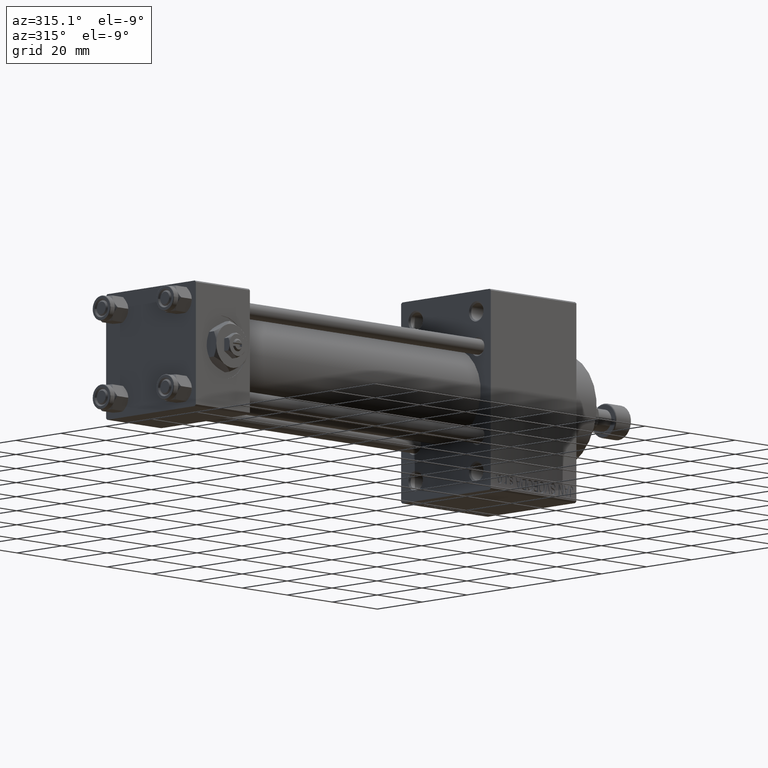
[diagram: clean part render]
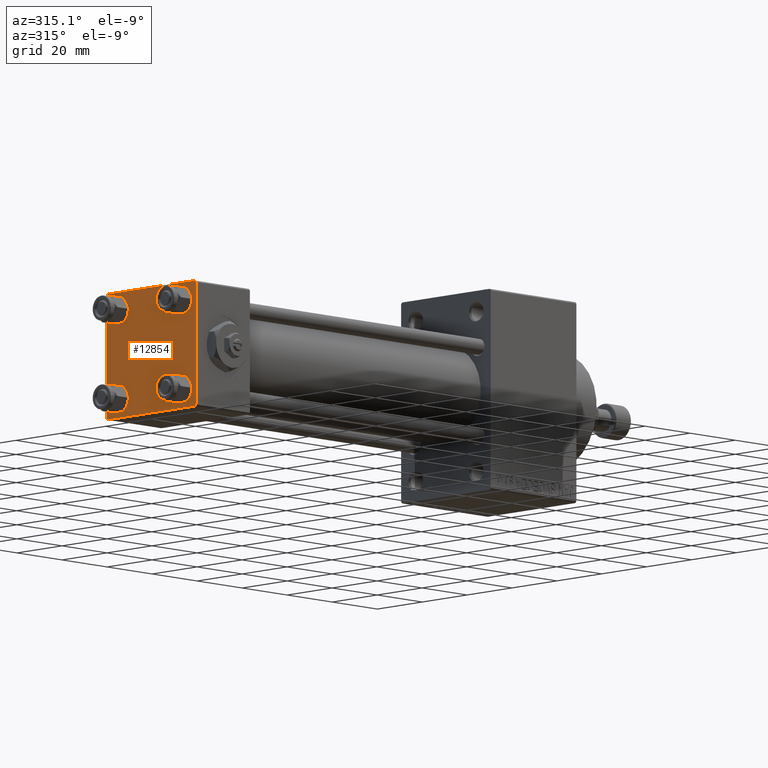
[diagram: same view with one face highlighted and labeled with its STEP entity id]
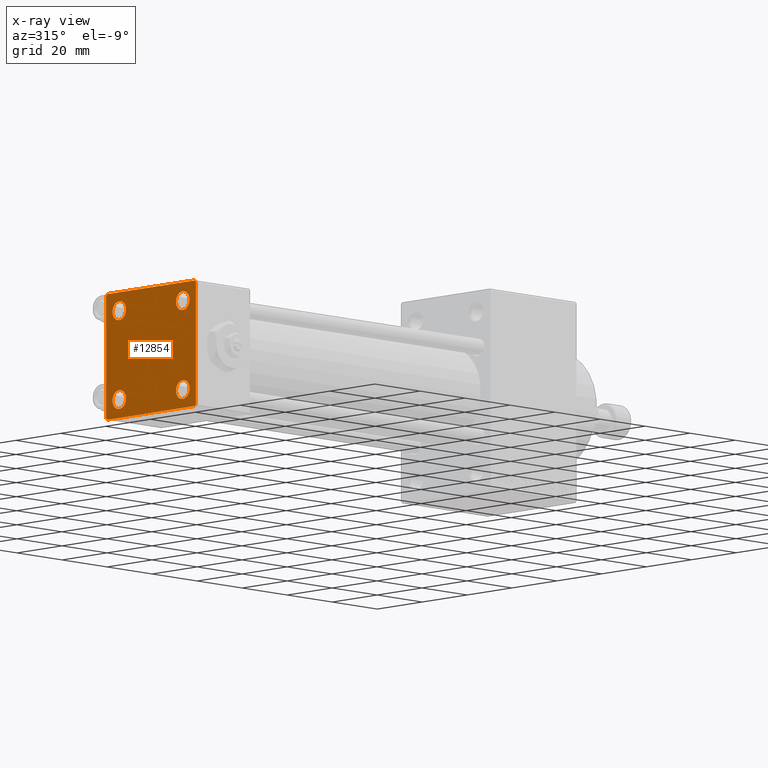
[diagram: x-ray of the same camera — body ghosted, the highlighted face saturated]
A machine part, auxiliary view. The second image highlights one B-rep face of the part: STEP entity #12854.
The next image is the same camera in x-ray: the body ghosted, the highlighted face saturated — about 0% of this face is hidden behind the body in this view.
In plain terms, the highlighted planar face has unit normal (-1, 0, 0).
Its self-contained STEP definition (entity closure, byte-faithful):
#162 = AXIS2_PLACEMENT_3D ( 'NONE', #30220, #48893, #45163 ) ;
#562 = FACE_BOUND ( 'NONE', #5232, .T. ) ;
#644 = DIRECTION ( 'NONE',  ( 1.000000000000000000, 0.000000000000000000, 0.000000000000000000 ) ) ;
#1057 = ORIENTED_EDGE ( 'NONE', *, *, #8814, .T. ) ;
#1256 = VERTEX_POINT ( 'NONE', #14360 ) ;
#1558 = LINE ( 'NONE', #35664, #22438 ) ;
#2102 = CARTESIAN_POINT ( 'NONE',  ( 0.000000000000000000, -20.00000000000000000, -19.49999999999999645 ) ) ;
#2186 = ORIENTED_EDGE ( 'NONE', *, *, #9487, .T. ) ;
#2409 = CARTESIAN_POINT ( 'NONE',  ( 0.000000000000000000, -20.00000000000000355, 19.99999999999998934 ) ) ;
#3156 = DIRECTION ( 'NONE',  ( -0.000000000000000000, 0.7071067811865500152, 0.7071067811865451302 ) ) ;
#3430 = VERTEX_POINT ( 'NONE', #33350 ) ;
#3490 = VERTEX_POINT ( 'NONE', #22659 ) ;
#3537 = VECTOR ( 'NONE', #13868, 1000.000000000000000 ) ;
#3688 = DIRECTION ( 'NONE',  ( 1.000000000000000000, 0.000000000000000000, 0.000000000000000000 ) ) ;
#4393 = ORIENTED_EDGE ( 'NONE', *, *, #42604, .T. ) ;
#4563 = VERTEX_POINT ( 'NONE', #9654 ) ;
#5232 = EDGE_LOOP ( 'NONE', ( #27392, #2186 ) ) ;
#5527 = CIRCLE ( 'NONE', #41358, 2.999999999999983569 ) ;
#5640 = LINE ( 'NONE', #2409, #3537 ) ;
#7453 = CARTESIAN_POINT ( 'NONE',  ( 0.000000000000000000, 20.00000000000000000, 20.00000000000000000 ) ) ;
#7624 = DIRECTION ( 'NONE',  ( 0.000000000000000000, 0.000000000000000000, 1.000000000000000000 ) ) ;
#8221 = VERTEX_POINT ( 'NONE', #18098 ) ;
#8330 = VECTOR ( 'NONE', #10200, 1000.000000000000000 ) ;
#8450 = DIRECTION ( 'NONE',  ( 1.000000000000000000, 0.000000000000000000, 0.000000000000000000 ) ) ;
#8575 = DIRECTION ( 'NONE',  ( 1.000000000000000000, 0.000000000000000000, 0.000000000000000000 ) ) ;
#8688 = CARTESIAN_POINT ( 'NONE',  ( 0.000000000000000000, -14.14999999999999503, 14.15000000000000391 ) ) ;
#8814 = EDGE_CURVE ( 'NONE', #3490, #3430, #1558, .T. ) ;
#9345 = LINE ( 'NONE', #17568, #46377 ) ;
#9487 = EDGE_CURVE ( 'NONE', #42202, #13769, #21655, .T. ) ;
#9654 = CARTESIAN_POINT ( 'NONE',  ( 0.000000000000000000, 14.14999999999999858, -17.14999999999998437 ) ) ;
#9746 = DIRECTION ( 'NONE',  ( -0.000000000000000000, -0.7071067811865524577, -0.7071067811865426878 ) ) ;
#10200 = DIRECTION ( 'NONE',  ( 0.000000000000000000, -1.000000000000000000, -2.602085213965210149E-16 ) ) ;
#10370 = VERTEX_POINT ( 'NONE', #25839 ) ;
#10421 = VERTEX_POINT ( 'NONE', #11856 ) ;
#10981 = EDGE_CURVE ( 'NONE', #13769, #42202, #26475, .T. ) ;
#10994 = ORIENTED_EDGE ( 'NONE', *, *, #20286, .T. ) ;
#11143 = CARTESIAN_POINT ( 'NONE',  ( 0.000000000000000000, -14.14999999999999503, -14.15000000000000391 ) ) ;
#11362 = VERTEX_POINT ( 'NONE', #22373 ) ;
#11621 = CARTESIAN_POINT ( 'NONE',  ( 0.000000000000000000, 14.14999999999999858, -14.15000000000000036 ) ) ;
#11679 = DIRECTION ( 'NONE',  ( 0.000000000000000000, 0.000000000000000000, 1.000000000000000000 ) ) ;
#11856 = CARTESIAN_POINT ( 'NONE',  ( 0.000000000000000000, -14.14999999999999503, -17.15000000000000924 ) ) ;
#12265 = PLANE ( 'NONE',  #38478 ) ;
#12806 = ORIENTED_EDGE ( 'NONE', *, *, #16680, .T. ) ;
#12854 = ADVANCED_FACE ( 'NONE', ( #19503, #15760, #23736, #562, #39143 ), #12265, .T. ) ;
#13431 = CARTESIAN_POINT ( 'NONE',  ( 0.000000000000000000, 20.00000000000000000, 20.00000000000000000 ) ) ;
#13769 = VERTEX_POINT ( 'NONE', #45816 ) ;
#13868 = DIRECTION ( 'NONE',  ( 0.000000000000000000, 8.673617379884036705E-17, -1.000000000000000000 ) ) ;
#13877 = LINE ( 'NONE', #27053, #32965 ) ;
#14185 = VECTOR ( 'NONE', #27732, 1000.000000000000000 ) ;
#14360 = CARTESIAN_POINT ( 'NONE',  ( 0.000000000000000000, 14.14999999999999858, -11.15000000000001812 ) ) ;
#15109 = EDGE_CURVE ( 'NONE', #11362, #40607, #5640, .T. ) ;
#15458 = CIRCLE ( 'NONE', #25811, 3.000000000000004441 ) ;
#15531 = CIRCLE ( 'NONE', #45730, 2.999999999999983569 ) ;
#15760 = FACE_BOUND ( 'NONE', #17341, .T. ) ;
#16004 = DIRECTION ( 'NONE',  ( -1.000000000000000000, 0.000000000000000000, -0.000000000000000000 ) ) ;
#16072 = EDGE_CURVE ( 'NONE', #11362, #10370, #13877, .T. ) ;
#16559 = DIRECTION ( 'NONE',  ( 0.000000000000000000, 0.000000000000000000, 1.000000000000000000 ) ) ;
#16644 = ORIENTED_EDGE ( 'NONE', *, *, #39650, .T. ) ;
#16680 = EDGE_CURVE ( 'NONE', #41706, #8221, #17908, .T. ) ;
#17341 = EDGE_LOOP ( 'NONE', ( #27473, #34415 ) ) ;
#17568 = CARTESIAN_POINT ( 'NONE',  ( 0.000000000000000000, -19.75000000000020961, -19.74999999999979394 ) ) ;
#17580 = VERTEX_POINT ( 'NONE', #18938 ) ;
#17690 = DIRECTION ( 'NONE',  ( 0.000000000000000000, 0.000000000000000000, 1.000000000000000000 ) ) ;
#17908 = CIRCLE ( 'NONE', #36159, 2.999999999999983569 ) ;
#18098 = CARTESIAN_POINT ( 'NONE',  ( 0.000000000000000000, -14.14999999999999503, 11.15000000000002345 ) ) ;
#18938 = CARTESIAN_POINT ( 'NONE',  ( 0.000000000000000000, 19.50000000000000000, 20.00000000000000000 ) ) ;
#19503 = FACE_BOUND ( 'NONE', #33250, .T. ) ;
#19553 = EDGE_CURVE ( 'NONE', #17580, #10370, #26153, .T. ) ;
#19993 = CARTESIAN_POINT ( 'NONE',  ( 0.000000000000000000, 0.000000000000000000, 0.000000000000000000 ) ) ;
#20279 = LINE ( 'NONE', #43421, #24282 ) ;
#20286 = EDGE_CURVE ( 'NONE', #17580, #24181, #20279, .T. ) ;
#20298 = AXIS2_PLACEMENT_3D ( 'NONE', #41733, #644, #7624 ) ;
#20500 = CARTESIAN_POINT ( 'NONE',  ( 0.000000000000000000, -14.14999999999999503, 17.14999999999998792 ) ) ;
#20602 = VERTEX_POINT ( 'NONE', #38271 ) ;
#21655 = CIRCLE ( 'NONE', #162, 2.999999999999983569 ) ;
#22373 = CARTESIAN_POINT ( 'NONE',  ( 0.000000000000000000, -20.00000000000000355, 19.49999999999998224 ) ) ;
#22438 = VECTOR ( 'NONE', #9746, 1000.000000000000000 ) ;
#22659 = CARTESIAN_POINT ( 'NONE',  ( 0.000000000000000000, 20.00000000000000000, -19.50000000000002132 ) ) ;
#23310 = EDGE_CURVE ( 'NONE', #3430, #20602, #39651, .T. ) ;
#23340 = DIRECTION ( 'NONE',  ( 0.000000000000000000, 0.000000000000000000, 1.000000000000000000 ) ) ;
#23495 = DIRECTION ( 'NONE',  ( -0.000000000000000000, 0.000000000000000000, 1.000000000000000000 ) ) ;
#23515 = CARTESIAN_POINT ( 'NONE',  ( 0.000000000000000000, 20.00000000000000000, -20.00000000000000711 ) ) ;
#23736 = FACE_BOUND ( 'NONE', #30996, .T. ) ;
#24015 = VECTOR ( 'NONE', #32120, 1000.000000000000000 ) ;
#24181 = VERTEX_POINT ( 'NONE', #34460 ) ;
#24282 = VECTOR ( 'NONE', #34959, 999.9999999999998863 ) ;
#25811 = AXIS2_PLACEMENT_3D ( 'NONE', #11143, #3688, #29850 ) ;
#25839 = CARTESIAN_POINT ( 'NONE',  ( 0.000000000000000000, -19.49999999999999289, 19.99999999999998934 ) ) ;
#26153 = LINE ( 'NONE', #7453, #8330 ) ;
#26475 = CIRCLE ( 'NONE', #47152, 2.999999999999983569 ) ;
#26550 = AXIS2_PLACEMENT_3D ( 'NONE', #39196, #8575, #16559 ) ;
#26749 = VERTEX_POINT ( 'NONE', #32265 ) ;
#27053 = CARTESIAN_POINT ( 'NONE',  ( -0.000000000000000000, -19.74999999999992539, 19.75000000000006395 ) ) ;
#27066 = DIRECTION ( 'NONE',  ( 1.000000000000000000, 0.000000000000000000, 0.000000000000000000 ) ) ;
#27380 = EDGE_CURVE ( 'NONE', #4563, #1256, #5527, .T. ) ;
#27392 = ORIENTED_EDGE ( 'NONE', *, *, #10981, .T. ) ;
#27473 = ORIENTED_EDGE ( 'NONE', *, *, #40112, .T. ) ;
#27732 = DIRECTION ( 'NONE',  ( 0.000000000000000000, -1.000000000000000000, 1.734723475976807094E-16 ) ) ;
#28162 = CIRCLE ( 'NONE', #26550, 2.999999999999983569 ) ;
#29210 = ORIENTED_EDGE ( 'NONE', *, *, #19553, .F. ) ;
#29661 = ORIENTED_EDGE ( 'NONE', *, *, #30992, .T. ) ;
#29850 = DIRECTION ( 'NONE',  ( 0.000000000000000000, 0.000000000000000000, 1.000000000000000000 ) ) ;
#30220 = CARTESIAN_POINT ( 'NONE',  ( 0.000000000000000000, 14.14999999999999858, 14.15000000000000036 ) ) ;
#30992 = EDGE_CURVE ( 'NONE', #24181, #3490, #39347, .T. ) ;
#30996 = EDGE_LOOP ( 'NONE', ( #4393, #32619 ) ) ;
#32120 = DIRECTION ( 'NONE',  ( 0.000000000000000000, 0.000000000000000000, -1.000000000000000000 ) ) ;
#32265 = CARTESIAN_POINT ( 'NONE',  ( 0.000000000000000000, -14.14999999999999503, -11.15000000000000036 ) ) ;
#32492 = DIRECTION ( 'NONE',  ( 0.000000000000000000, -0.7071067811865401342, 0.7071067811865549002 ) ) ;
#32619 = ORIENTED_EDGE ( 'NONE', *, *, #27380, .T. ) ;
#32965 = VECTOR ( 'NONE', #3156, 1000.000000000000114 ) ;
#33136 = ORIENTED_EDGE ( 'NONE', *, *, #16072, .T. ) ;
#33250 = EDGE_LOOP ( 'NONE', ( #12806, #16644 ) ) ;
#33350 = CARTESIAN_POINT ( 'NONE',  ( 0.000000000000000000, 19.50000000000000711, -20.00000000000000711 ) ) ;
#33353 = CARTESIAN_POINT ( 'NONE',  ( 0.000000000000000000, 14.14999999999999858, -14.15000000000000036 ) ) ;
#34415 = ORIENTED_EDGE ( 'NONE', *, *, #41910, .T. ) ;
#34460 = CARTESIAN_POINT ( 'NONE',  ( 0.000000000000000000, 20.00000000000000000, 19.49999999999999289 ) ) ;
#34959 = DIRECTION ( 'NONE',  ( 0.000000000000000000, 0.7071067811865425767, -0.7071067811865525687 ) ) ;
#35192 = CARTESIAN_POINT ( 'NONE',  ( 0.000000000000000000, 14.14999999999999858, 11.15000000000001990 ) ) ;
#35399 = CIRCLE ( 'NONE', #20298, 3.000000000000004441 ) ;
#35664 = CARTESIAN_POINT ( 'NONE',  ( -0.000000000000000000, 19.74999999999986855, -19.75000000000014211 ) ) ;
#35782 = ORIENTED_EDGE ( 'NONE', *, *, #38364, .T. ) ;
#35826 = DIRECTION ( 'NONE',  ( 0.000000000000000000, 0.000000000000000000, 1.000000000000000000 ) ) ;
#36159 = AXIS2_PLACEMENT_3D ( 'NONE', #8688, #8450, #35826 ) ;
#38271 = CARTESIAN_POINT ( 'NONE',  ( 0.000000000000000000, -19.50000000000000711, -20.00000000000000000 ) ) ;
#38364 = EDGE_CURVE ( 'NONE', #20602, #40607, #9345, .T. ) ;
#38478 = AXIS2_PLACEMENT_3D ( 'NONE', #19993, #16004, #23495 ) ;
#38702 = EDGE_LOOP ( 'NONE', ( #29661, #1057, #43068, #35782, #40909, #33136, #29210, #10994 ) ) ;
#38807 = CARTESIAN_POINT ( 'NONE',  ( 0.000000000000000000, 14.14999999999999858, 14.15000000000000036 ) ) ;
#39143 = FACE_OUTER_BOUND ( 'NONE', #38702, .T. ) ;
#39196 = CARTESIAN_POINT ( 'NONE',  ( 0.000000000000000000, -14.14999999999999503, 14.15000000000000391 ) ) ;
#39347 = LINE ( 'NONE', #13431, #24015 ) ;
#39650 = EDGE_CURVE ( 'NONE', #8221, #41706, #28162, .T. ) ;
#39651 = LINE ( 'NONE', #23515, #14185 ) ;
#40112 = EDGE_CURVE ( 'NONE', #26749, #10421, #15458, .T. ) ;
#40607 = VERTEX_POINT ( 'NONE', #2102 ) ;
#40909 = ORIENTED_EDGE ( 'NONE', *, *, #15109, .F. ) ;
#41358 = AXIS2_PLACEMENT_3D ( 'NONE', #11621, #27066, #23340 ) ;
#41706 = VERTEX_POINT ( 'NONE', #20500 ) ;
#41733 = CARTESIAN_POINT ( 'NONE',  ( 0.000000000000000000, -14.14999999999999503, -14.15000000000000391 ) ) ;
#41807 = DIRECTION ( 'NONE',  ( 1.000000000000000000, 0.000000000000000000, 0.000000000000000000 ) ) ;
#41910 = EDGE_CURVE ( 'NONE', #10421, #26749, #35399, .T. ) ;
#42202 = VERTEX_POINT ( 'NONE', #35192 ) ;
#42604 = EDGE_CURVE ( 'NONE', #1256, #4563, #15531, .T. ) ;
#43068 = ORIENTED_EDGE ( 'NONE', *, *, #23310, .T. ) ;
#43421 = CARTESIAN_POINT ( 'NONE',  ( -0.000000000000000000, 19.75000000000013500, 19.74999999999986144 ) ) ;
#44326 = DIRECTION ( 'NONE',  ( 1.000000000000000000, 0.000000000000000000, 0.000000000000000000 ) ) ;
#45163 = DIRECTION ( 'NONE',  ( 0.000000000000000000, 0.000000000000000000, 1.000000000000000000 ) ) ;
#45730 = AXIS2_PLACEMENT_3D ( 'NONE', #33353, #44326, #17690 ) ;
#45816 = CARTESIAN_POINT ( 'NONE',  ( 0.000000000000000000, 14.14999999999999858, 17.14999999999998437 ) ) ;
#46377 = VECTOR ( 'NONE', #32492, 1000.000000000000000 ) ;
#47152 = AXIS2_PLACEMENT_3D ( 'NONE', #38807, #41807, #11679 ) ;
#48893 = DIRECTION ( 'NONE',  ( 1.000000000000000000, 0.000000000000000000, 0.000000000000000000 ) ) ;